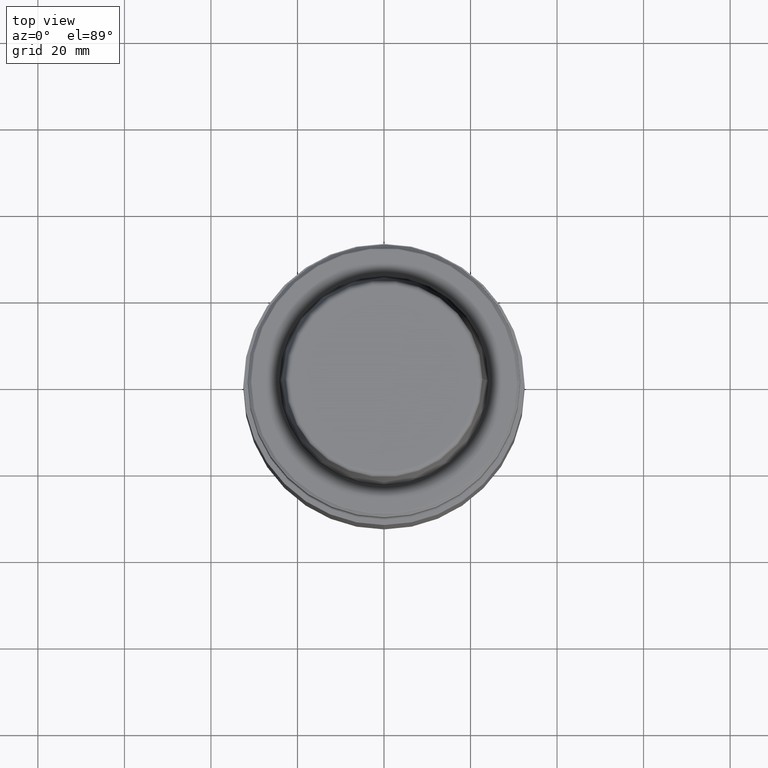
[diagram: clean part render]
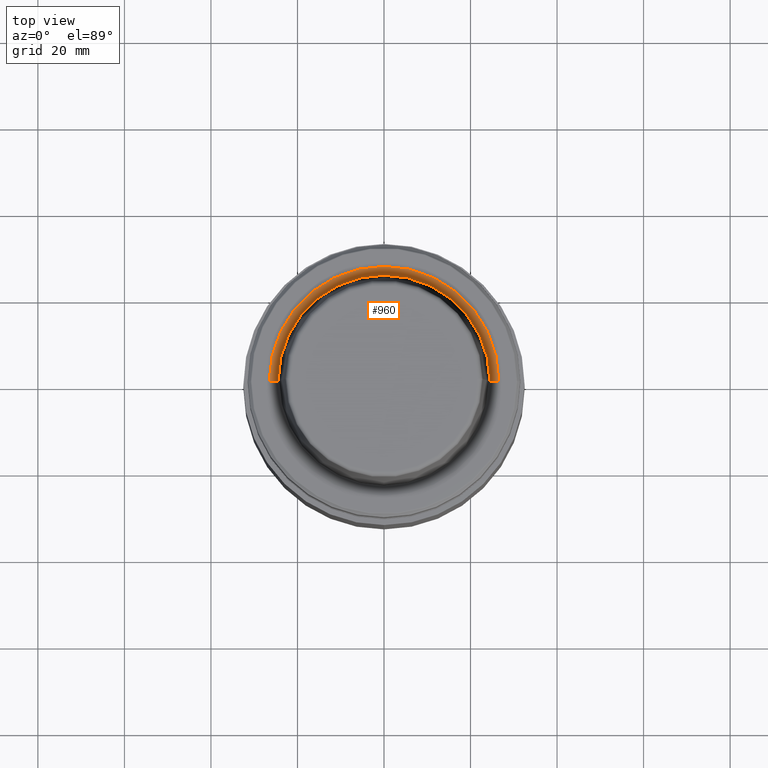
[diagram: same view with one face highlighted and labeled with its STEP entity id]
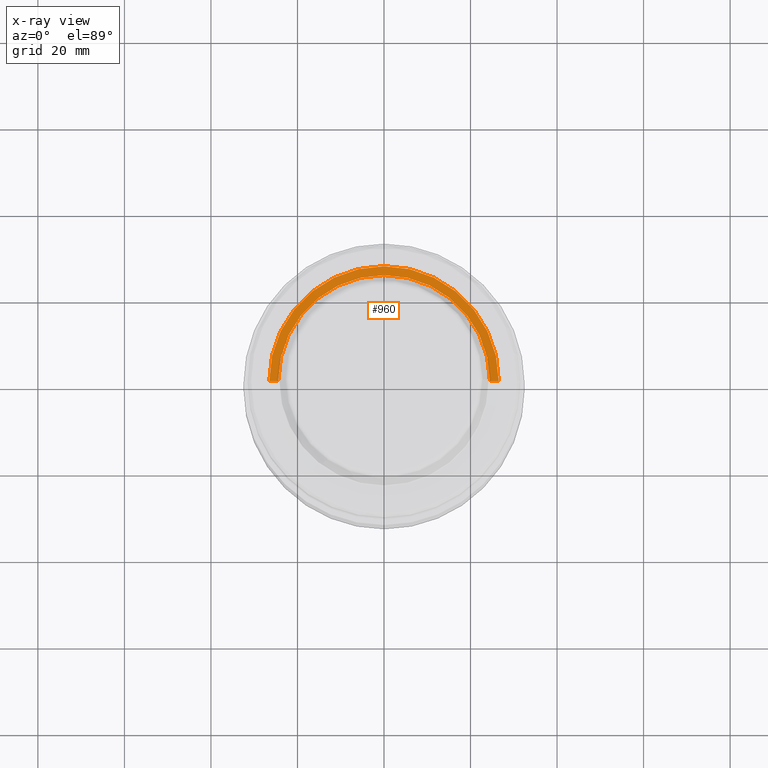
[diagram: x-ray of the same camera — body ghosted, the highlighted face saturated]
A machine part, top view. The second image highlights one B-rep face of the part: STEP entity #960.
The next image is the same camera in x-ray: the body ghosted, the highlighted face saturated — about 0% of this face is hidden behind the body in this view.
In plain terms, the highlighted conical surface has half-angle 80 deg.
Its self-contained STEP definition (entity closure, byte-faithful):
#3 = CARTESIAN_POINT ( 'NONE',  ( -26.52499999999999900, 3.248375634738354300E-015, 0.0000000000000000000 ) ) ;
#6 = DIRECTION ( 'NONE',  ( 1.000000000000000000, 0.0000000000000000000, 0.0000000000000000000 ) ) ;
#65 = ORIENTED_EDGE ( 'NONE', *, *, #358, .F. ) ;
#74 = VERTEX_POINT ( 'NONE', #567 ) ;
#79 = DIRECTION ( 'NONE',  ( -0.0000000000000000000, -0.0000000000000000000, 1.000000000000000000 ) ) ;
#105 = DIRECTION ( 'NONE',  ( -0.0000000000000000000, -0.0000000000000000000, 1.000000000000000000 ) ) ;
#141 = AXIS2_PLACEMENT_3D ( 'NONE', #693, #105, #6 ) ;
#146 = EDGE_CURVE ( 'NONE', #74, #853, #620, .T. ) ;
#209 = VECTOR ( 'NONE', #612, 1000.000000000000200 ) ;
#214 = CARTESIAN_POINT ( 'NONE',  ( 26.52499999999999900, 0.0000000000000000000, 0.0000000000000000000 ) ) ;
#218 = DIRECTION ( 'NONE',  ( -0.9848077530122074700, 1.206041662501897100E-016, 0.1736481776669334700 ) ) ;
#232 = FACE_OUTER_BOUND ( 'NONE', #299, .T. ) ;
#292 = CONICAL_SURFACE ( 'NONE', #141, 26.52499999999999900, 1.396263401595460500 ) ;
#299 = EDGE_LOOP ( 'NONE', ( #65, #979, #409, #628 ) ) ;
#300 = VERTEX_POINT ( 'NONE', #1274 ) ;
#315 = VERTEX_POINT ( 'NONE', #711 ) ;
#334 = DIRECTION ( 'NONE',  ( -0.0000000000000000000, -0.0000000000000000000, 1.000000000000000000 ) ) ;
#358 = EDGE_CURVE ( 'NONE', #315, #300, #474, .T. ) ;
#409 = ORIENTED_EDGE ( 'NONE', *, *, #146, .T. ) ;
#474 = LINE ( 'NONE', #3, #736 ) ;
#567 = CARTESIAN_POINT ( 'NONE',  ( 24.47682408883345000, 0.0000000000000000000, -0.3611486743758107700 ) ) ;
#612 = DIRECTION ( 'NONE',  ( 0.9848077530122074700, 0.0000000000000000000, 0.1736481776669334700 ) ) ;
#620 = LINE ( 'NONE', #214, #209 ) ;
#628 = ORIENTED_EDGE ( 'NONE', *, *, #788, .T. ) ;
#693 = CARTESIAN_POINT ( 'NONE',  ( 0.0000000000000000000, 0.0000000000000000000, 0.0000000000000000000 ) ) ;
#711 = CARTESIAN_POINT ( 'NONE',  ( -24.47682408883345000, 2.997546427368271100E-015, -0.3611486743758107700 ) ) ;
#736 = VECTOR ( 'NONE', #218, 1000.000000000000200 ) ;
#788 = EDGE_CURVE ( 'NONE', #853, #300, #1037, .T. ) ;
#822 = AXIS2_PLACEMENT_3D ( 'NONE', #966, #79, #866 ) ;
#853 = VERTEX_POINT ( 'NONE', #1167 ) ;
#854 = AXIS2_PLACEMENT_3D ( 'NONE', #906, #334, #1008 ) ;
#866 = DIRECTION ( 'NONE',  ( 1.000000000000000000, 0.0000000000000000000, 0.0000000000000000000 ) ) ;
#906 = CARTESIAN_POINT ( 'NONE',  ( 0.0000000000000000000, 0.0000000000000000000, -0.3611486743758107700 ) ) ;
#923 = CIRCLE ( 'NONE', #854, 24.47682408883346700 ) ;
#960 = ADVANCED_FACE ( 'NONE', ( #232 ), #292, .F. ) ;
#966 = CARTESIAN_POINT ( 'NONE',  ( 0.0000000000000000000, 0.0000000000000000000, 0.0000000000000000000 ) ) ;
#979 = ORIENTED_EDGE ( 'NONE', *, *, #1068, .F. ) ;
#1008 = DIRECTION ( 'NONE',  ( 1.000000000000000000, 0.0000000000000000000, 0.0000000000000000000 ) ) ;
#1037 = CIRCLE ( 'NONE', #822, 26.52499999999999900 ) ;
#1068 = EDGE_CURVE ( 'NONE', #74, #315, #923, .T. ) ;
#1167 = CARTESIAN_POINT ( 'NONE',  ( 26.52499999999999900, 0.0000000000000000000, 0.0000000000000000000 ) ) ;
#1274 = CARTESIAN_POINT ( 'NONE',  ( -26.52499999999999900, 3.248375634738354300E-015, 0.0000000000000000000 ) ) ;